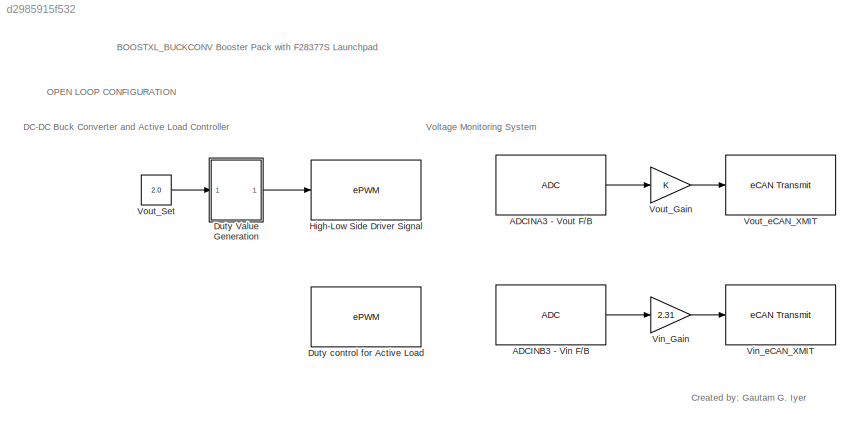
MODEL slx_d2985915f532
KIND model
CONFIG AbsTol = auto
CONFIG EnableMultiTasking = on
CONFIG FixedStep = auto
CONFIG MaxStep = auto
CONFIG MinStep = auto
CONFIG RelTol = 1e-3
CONFIG SampleTimeConstraint = Unconstrained
CONFIG Solver = FixedStepDiscrete
CONFIG SolverName = FixedStepDiscrete
CONFIG StartTime = 0.0
CONFIG StopTime = 10.0
BLOCK [Reference] ADCINA3 - Vout F//B  REF=c2802xlib/ADC
  Ports = [0, 1]
  SourceBlock = c2802xlib/ADC
  SourceType = C2802x/03x/05x/06x/M3x/37x/07x ADC
  UserDataPersistent = on
BLOCK [Reference] ADCINB3 - Vin F//B  REF=c2802xlib/ADC
  Ports = [0, 1]
  SourceBlock = c2802xlib/ADC
  SourceType = C2802x/03x/05x/06x/M3x/37x/07x ADC
  UserDataPersistent = on
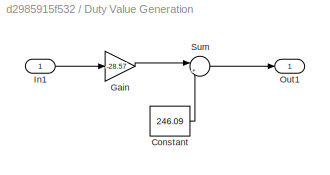
BLOCK [SubSystem] Duty Value Generation
  Ports = [1, 1]
  RequestExecContextInheritance = off
  Variant = off
BLOCK [Constant] Duty Value Generation/Constant
  OutDataTypeStr = double
  Value = 246.09
  VectorParams1D = off
BLOCK [Gain] Duty Value Generation/Gain
  Gain = -28.57
  OutDataTypeStr = double
  ParamDataTypeStr = double
  SaturateOnIntegerOverflow = off
BLOCK [Inport] Duty Value Generation/In1
  IconDisplay = Port number
BLOCK [Outport] Duty Value Generation/Out1
  IconDisplay = Port number
BLOCK [Sum] Duty Value Generation/Sum
  IconShape = round
  InputSameDT = off
  Inputs = |++
  OutDataTypeStr = Inherit: Inherit via internal rule
  Ports = [2, 1]
  SaturateOnIntegerOverflow = off
BLOCK [Reference] Duty control for Active Load   REF=c2802xlib/ePWM
  Ports = []
  SourceBlock = c2802xlib/ePWM
  SourceType = C2802x/03x/05x/06x/M3x/37x/07x ePWM
  UserDataPersistent = on
BLOCK [Reference] High-Low Side Driver Signal  REF=c2802xlib/ePWM
  Ports = [1]
  SourceBlock = c2802xlib/ePWM
  SourceType = C2802x/03x/05x/06x/M3x/37x/07x ePWM
  UserDataPersistent = on
BLOCK [Gain] Vin_Gain
  Gain = 2.31
  OutDataTypeStr = uint16
  ParamDataTypeStr = double
  SaturateOnIntegerOverflow = off
BLOCK [Reference] Vin_eCAN_XMIT  REF=c280xlib/eCAN Transmit
  Ports = [1]
  SourceBlock = c280xlib/eCAN Transmit
  SourceType = C28x eCAN Transmit
BLOCK [Gain] Vout_Gain
  OutDataTypeStr = uint16
  ParamDataTypeStr = double
  SaturateOnIntegerOverflow = off
BLOCK [Constant] Vout_Set
  OutDataTypeStr = double
  Value = 2.0
  VectorParams1D = off
BLOCK [Reference] Vout_eCAN_XMIT  REF=c280xlib/eCAN Transmit
  Ports = [1]
  SourceBlock = c280xlib/eCAN Transmit
  SourceType = C28x eCAN Transmit
ANNOTATION (root): BOOSTXL_BUCKCONV Booster Pack with F28377S Launchpad
ANNOTATION (root): Created by: Gautam G. Iyer
ANNOTATION (root): DC-DC Buck Converter and Active Load Controller
ANNOTATION (root): OPEN LOOP CONFIGURATION
ANNOTATION (root): Voltage Monitoring System
LINE ADCINA3 - Vout F//B:1 -> Vout_Gain:1
LINE ADCINB3 - Vin F//B:1 -> Vin_Gain:1
LINE Duty Value Generation/Constant:1 -> Duty Value Generation/Sum:2
LINE Duty Value Generation/Gain:1 -> Duty Value Generation/Sum:1
LINE Duty Value Generation/In1:1 -> Duty Value Generation/Gain:1
LINE Duty Value Generation/Sum:1 -> Duty Value Generation/Out1:1
LINE Duty Value Generation:1 -> High-Low Side Driver Signal:1
LINE Vin_Gain:1 -> Vin_eCAN_XMIT:1
LINE Vout_Gain:1 -> Vout_eCAN_XMIT:1
LINE Vout_Set:1 -> Duty Value Generation:1
